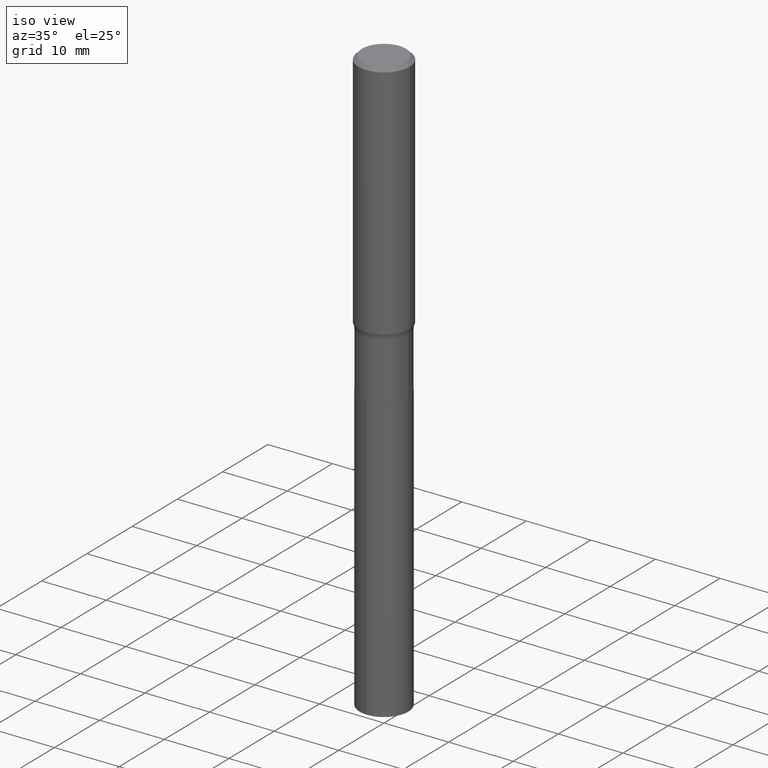
[diagram: clean part render]
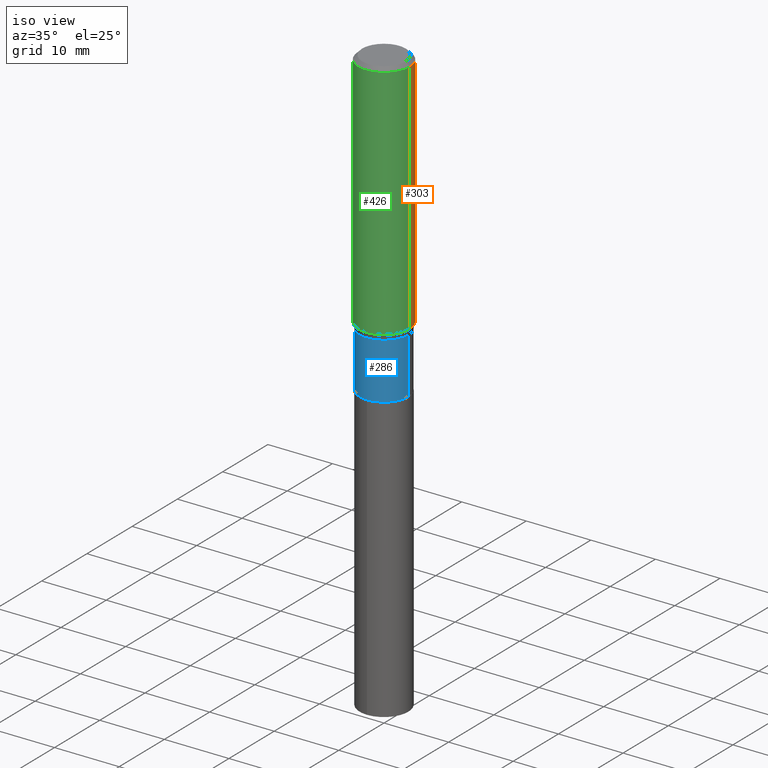
[diagram: same view with three faces highlighted in distinct colors, each labeled with its STEP entity id]
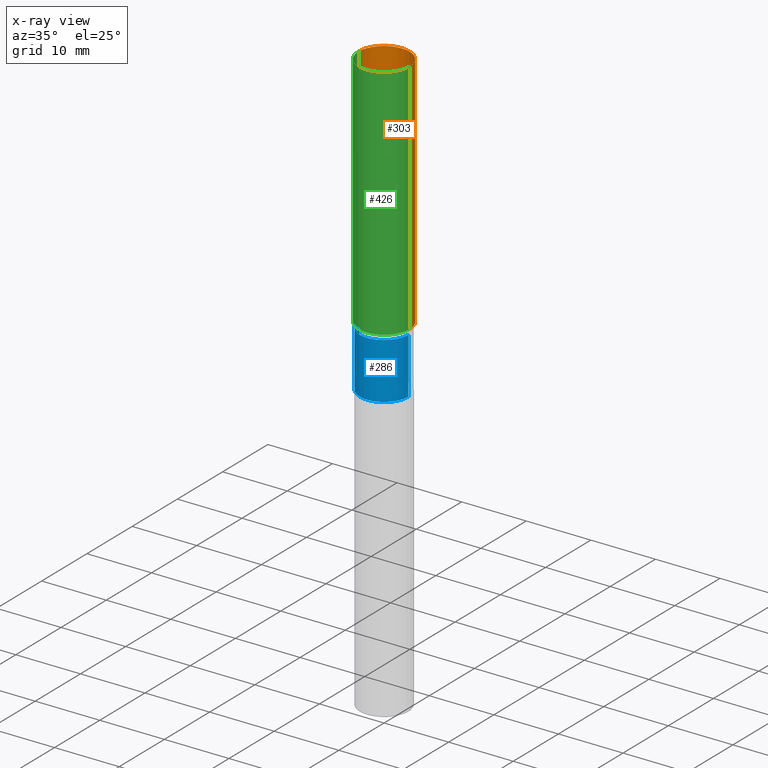
[diagram: x-ray of the same camera — body ghosted, the three highlighted faces saturated]
A machine part, iso view with three faces highlighted in distinct colors.
The next image is the same camera in x-ray (body ghosted, the three faces saturated) — at least one of them is partly hidden behind the body in this view.
Their STEP definitions:

[orange] entity #303 — the highlighted cylindrical surface (edge-blend (fillet) strip) has radius 3.9688 mm, axis along (-0, 0, 1).
#17 = CARTESIAN_POINT ( 'NONE',  ( 5.731567514496448931E-31, -8.183159387913672688E-17, -0.02343750000000014225 ) ) ;
#22 = DIRECTION ( 'NONE',  ( -2.445468806185136597E-29, 3.491481338843145583E-15, 1.000000000000000000 ) ) ;
#51 = CARTESIAN_POINT ( 'NONE',  ( -0.1562500000000000833, 1.110223024625157132E-15, -7.685836078523293962E-30 ) ) ;
#54 = DIRECTION ( 'NONE',  ( 1.000000000000000000, -6.982962677686268288E-15, 0.000000000000000000 ) ) ;
#65 = CARTESIAN_POINT ( 'NONE',  ( 0.000000000000000000, 0.000000000000000000, 0.000000000000000000 ) ) ;
#68 = CYLINDRICAL_SURFACE ( 'NONE', #140, 0.1562500000000000833 ) ;
#86 = EDGE_CURVE ( 'NONE', #256, #101, #365, .T. ) ;
#96 = DIRECTION ( 'NONE',  ( -2.445468806185136877E-29, 3.491481338843145188E-15, 1.000000000000000000 ) ) ;
#101 = VERTEX_POINT ( 'NONE', #437 ) ;
#105 = EDGE_CURVE ( 'NONE', #101, #217, #473, .T. ) ;
#109 = FACE_OUTER_BOUND ( 'NONE', #232, .T. ) ;
#117 = ORIENTED_EDGE ( 'NONE', *, *, #123, .T. ) ;
#123 = EDGE_CURVE ( 'NONE', #152, #217, #170, .T. ) ;
#140 = AXIS2_PLACEMENT_3D ( 'NONE', #65, #180, #304 ) ;
#147 = EDGE_CURVE ( 'NONE', #256, #152, #151, .T. ) ;
#151 = CIRCLE ( 'NONE', #251, 0.1562500000000001665 ) ;
#152 = VERTEX_POINT ( 'NONE', #288 ) ;
#153 = CARTESIAN_POINT ( 'NONE',  ( 0.1562500000000001665, -6.217981170176073659E-15, -1.468400588240382554 ) ) ;
#170 = LINE ( 'NONE', #51, #202 ) ;
#180 = DIRECTION ( 'NONE',  ( -2.445468806185136597E-29, 3.491481338843145583E-15, 1.000000000000000000 ) ) ;
#194 = VECTOR ( 'NONE', #206, 39.37007874015748143 ) ;
#202 = VECTOR ( 'NONE', #96, 39.37007874015748143 ) ;
#206 = DIRECTION ( 'NONE',  ( -2.445468806185136877E-29, 3.491481338843145188E-15, 1.000000000000000000 ) ) ;
#217 = VERTEX_POINT ( 'NONE', #252 ) ;
#232 = EDGE_LOOP ( 'NONE', ( #270, #117, #315, #414 ) ) ;
#236 = AXIS2_PLACEMENT_3D ( 'NONE', #17, #402, #403 ) ;
#244 = CARTESIAN_POINT ( 'NONE',  ( 3.590927833525760442E-29, -5.126893251787593696E-15, -1.468400588240382554 ) ) ;
#251 = AXIS2_PLACEMENT_3D ( 'NONE', #244, #22, #54 ) ;
#252 = CARTESIAN_POINT ( 'NONE',  ( -0.1562500000000000000, -1.494139398208207734E-15, -0.02343750000000014225 ) ) ;
#256 = VERTEX_POINT ( 'NONE', #153 ) ;
#270 = ORIENTED_EDGE ( 'NONE', *, *, #147, .T. ) ;
#288 = CARTESIAN_POINT ( 'NONE',  ( -0.1562500000000001665, -4.016670227162435578E-15, -1.468400588240382554 ) ) ;
#303 = ADVANCED_FACE ( 'NONE', ( #109 ), #68, .T. ) ;
#304 = DIRECTION ( 'NONE',  ( 1.000000000000000000, -6.982962677686266711E-15, 4.876176775795935232E-29 ) ) ;
#315 = ORIENTED_EDGE ( 'NONE', *, *, #105, .F. ) ;
#327 = CARTESIAN_POINT ( 'NONE',  ( 0.1562500000000000833, -1.091087918388479765E-15, 7.619026212181153180E-30 ) ) ;
#365 = LINE ( 'NONE', #327, #194 ) ;
#402 = DIRECTION ( 'NONE',  ( -2.445468806185136597E-29, 3.491481338843145583E-15, 1.000000000000000000 ) ) ;
#403 = DIRECTION ( 'NONE',  ( 1.000000000000000000, -6.982962677686266711E-15, 0.000000000000000000 ) ) ;
#414 = ORIENTED_EDGE ( 'NONE', *, *, #86, .F. ) ;
#437 = CARTESIAN_POINT ( 'NONE',  ( 0.1562500000000000000, -1.172919512267615999E-15, -0.02343750000000014225 ) ) ;
#473 = CIRCLE ( 'NONE', #236, 0.1562500000000000000 ) ;

[blue] entity #286 — the highlighted cylindrical surface (edge-blend (fillet) strip) has radius 3.7706 mm, axis along (-0, 0, 1).
#1 = CARTESIAN_POINT ( 'NONE',  ( 0.1484499999999999431, -6.282222372980468867E-15, -1.502400000000000402 ) ) ;
#24 = EDGE_CURVE ( 'NONE', #200, #450, #331, .T. ) ;
#29 = ORIENTED_EDGE ( 'NONE', *, *, #24, .T. ) ;
#34 = AXIS2_PLACEMENT_3D ( 'NONE', #302, #182, #444 ) ;
#57 = VECTOR ( 'NONE', #229, 39.37007874015748143 ) ;
#85 = VERTEX_POINT ( 'NONE', #1 ) ;
#97 = CIRCLE ( 'NONE', #226, 0.1484499999999999431 ) ;
#113 = AXIS2_PLACEMENT_3D ( 'NONE', #425, #463, #355 ) ;
#142 = CARTESIAN_POINT ( 'NONE',  ( -0.1484499999999999709, 1.054800691235868519E-15, -7.302159141483407353E-30 ) ) ;
#150 = FACE_OUTER_BOUND ( 'NONE', #385, .T. ) ;
#168 = EDGE_CURVE ( 'NONE', #448, #85, #97, .T. ) ;
#174 = DIRECTION ( 'NONE',  ( -2.445468806185136597E-29, 3.491481338843145583E-15, 1.000000000000000000 ) ) ;
#182 = DIRECTION ( 'NONE',  ( -2.445468806185136597E-29, 3.491481338843145583E-15, 1.000000000000000000 ) ) ;
#188 = VECTOR ( 'NONE', #278, 39.37007874015748143 ) ;
#200 = VERTEX_POINT ( 'NONE', #329 ) ;
#213 = EDGE_CURVE ( 'NONE', #450, #85, #480, .T. ) ;
#214 = DIRECTION ( 'NONE',  ( 1.000000000000000000, -6.982962677686264344E-15, 0.000000000000000000 ) ) ;
#215 = CYLINDRICAL_SURFACE ( 'NONE', #34, 0.1484499999999999709 ) ;
#226 = AXIS2_PLACEMENT_3D ( 'NONE', #442, #174, #214 ) ;
#229 = DIRECTION ( 'NONE',  ( -2.445468806185136877E-29, 3.491481338843145188E-15, 1.000000000000000000 ) ) ;
#273 = CARTESIAN_POINT ( 'NONE',  ( 0.1484499999999999986, -7.472468361392097332E-15, -1.843300000000000161 ) ) ;
#278 = DIRECTION ( 'NONE',  ( -2.445468806185136877E-29, 3.491481338843145188E-15, 1.000000000000000000 ) ) ;
#280 = CARTESIAN_POINT ( 'NONE',  ( 0.1484499999999999709, -1.036620809502526093E-15, 7.238684423669065009E-30 ) ) ;
#286 = ADVANCED_FACE ( 'NONE', ( #150 ), #215, .T. ) ;
#302 = CARTESIAN_POINT ( 'NONE',  ( 0.000000000000000000, 0.000000000000000000, 0.000000000000000000 ) ) ;
#305 = ORIENTED_EDGE ( 'NONE', *, *, #213, .T. ) ;
#311 = ORIENTED_EDGE ( 'NONE', *, *, #168, .F. ) ;
#329 = CARTESIAN_POINT ( 'NONE',  ( -0.1484499999999999986, -4.785923866447888291E-15, -1.843300000000000161 ) ) ;
#331 = CIRCLE ( 'NONE', #113, 0.1484499999999999986 ) ;
#344 = ORIENTED_EDGE ( 'NONE', *, *, #390, .F. ) ;
#355 = DIRECTION ( 'NONE',  ( 1.000000000000000000, -6.982962677686268288E-15, 0.000000000000000000 ) ) ;
#385 = EDGE_LOOP ( 'NONE', ( #344, #29, #305, #311 ) ) ;
#390 = EDGE_CURVE ( 'NONE', #200, #448, #481, .T. ) ;
#425 = CARTESIAN_POINT ( 'NONE',  ( 4.507732650441062752E-29, -6.435847551889571436E-15, -1.843300000000000161 ) ) ;
#442 = CARTESIAN_POINT ( 'NONE',  ( 3.674072334412550118E-29, -5.245601563477943760E-15, -1.502400000000000402 ) ) ;
#444 = DIRECTION ( 'NONE',  ( 1.000000000000000000, -6.982962677686266711E-15, 4.876176775795935793E-29 ) ) ;
#448 = VERTEX_POINT ( 'NONE', #466 ) ;
#450 = VERTEX_POINT ( 'NONE', #273 ) ;
#463 = DIRECTION ( 'NONE',  ( -2.445468806185136597E-29, 3.491481338843145583E-15, 1.000000000000000000 ) ) ;
#466 = CARTESIAN_POINT ( 'NONE',  ( -0.1484499999999999431, -4.785923866447888291E-15, -1.502400000000000402 ) ) ;
#480 = LINE ( 'NONE', #280, #188 ) ;
#481 = LINE ( 'NONE', #142, #57 ) ;

[green] entity #426 — the highlighted cylindrical surface (edge-blend (fillet) strip) has radius 3.9688 mm, axis along (-0, 0, 1).
#7 = ORIENTED_EDGE ( 'NONE', *, *, #492, .T. ) ;
#41 = DIRECTION ( 'NONE',  ( 1.000000000000000000, -6.982962677686268288E-15, 0.000000000000000000 ) ) ;
#46 = EDGE_LOOP ( 'NONE', ( #430, #7, #146, #348 ) ) ;
#51 = CARTESIAN_POINT ( 'NONE',  ( -0.1562500000000000833, 1.110223024625157132E-15, -7.685836078523293962E-30 ) ) ;
#86 = EDGE_CURVE ( 'NONE', #256, #101, #365, .T. ) ;
#96 = DIRECTION ( 'NONE',  ( -2.445468806185136877E-29, 3.491481338843145188E-15, 1.000000000000000000 ) ) ;
#101 = VERTEX_POINT ( 'NONE', #437 ) ;
#118 = DIRECTION ( 'NONE',  ( 1.000000000000000000, -6.982962677686266711E-15, 4.876176775795935232E-29 ) ) ;
#123 = EDGE_CURVE ( 'NONE', #152, #217, #170, .T. ) ;
#146 = ORIENTED_EDGE ( 'NONE', *, *, #86, .T. ) ;
#152 = VERTEX_POINT ( 'NONE', #288 ) ;
#153 = CARTESIAN_POINT ( 'NONE',  ( 0.1562500000000001665, -6.217981170176073659E-15, -1.468400588240382554 ) ) ;
#163 = DIRECTION ( 'NONE',  ( -2.445468806185136597E-29, 3.491481338843145583E-15, 1.000000000000000000 ) ) ;
#170 = LINE ( 'NONE', #51, #202 ) ;
#194 = VECTOR ( 'NONE', #206, 39.37007874015748143 ) ;
#202 = VECTOR ( 'NONE', #96, 39.37007874015748143 ) ;
#206 = DIRECTION ( 'NONE',  ( -2.445468806185136877E-29, 3.491481338843145188E-15, 1.000000000000000000 ) ) ;
#211 = CIRCLE ( 'NONE', #310, 0.1562500000000000000 ) ;
#217 = VERTEX_POINT ( 'NONE', #252 ) ;
#219 = AXIS2_PLACEMENT_3D ( 'NONE', #456, #239, #118 ) ;
#225 = CARTESIAN_POINT ( 'NONE',  ( 3.590927833525760442E-29, -5.126893251787593696E-15, -1.468400588240382554 ) ) ;
#235 = CYLINDRICAL_SURFACE ( 'NONE', #219, 0.1562500000000000833 ) ;
#239 = DIRECTION ( 'NONE',  ( -2.445468806185136597E-29, 3.491481338843145583E-15, 1.000000000000000000 ) ) ;
#252 = CARTESIAN_POINT ( 'NONE',  ( -0.1562500000000000000, -1.494139398208207734E-15, -0.02343750000000014225 ) ) ;
#256 = VERTEX_POINT ( 'NONE', #153 ) ;
#271 = FACE_OUTER_BOUND ( 'NONE', #46, .T. ) ;
#283 = AXIS2_PLACEMENT_3D ( 'NONE', #225, #312, #41 ) ;
#288 = CARTESIAN_POINT ( 'NONE',  ( -0.1562500000000001665, -4.016670227162435578E-15, -1.468400588240382554 ) ) ;
#310 = AXIS2_PLACEMENT_3D ( 'NONE', #419, #163, #391 ) ;
#312 = DIRECTION ( 'NONE',  ( -2.445468806185136597E-29, 3.491481338843145583E-15, 1.000000000000000000 ) ) ;
#327 = CARTESIAN_POINT ( 'NONE',  ( 0.1562500000000000833, -1.091087918388479765E-15, 7.619026212181153180E-30 ) ) ;
#348 = ORIENTED_EDGE ( 'NONE', *, *, #483, .F. ) ;
#365 = LINE ( 'NONE', #327, #194 ) ;
#391 = DIRECTION ( 'NONE',  ( 1.000000000000000000, -6.982962677686266711E-15, 0.000000000000000000 ) ) ;
#419 = CARTESIAN_POINT ( 'NONE',  ( 5.731567514496448931E-31, -8.183159387913672688E-17, -0.02343750000000014225 ) ) ;
#426 = ADVANCED_FACE ( 'NONE', ( #271 ), #235, .T. ) ;
#429 = CIRCLE ( 'NONE', #283, 0.1562500000000001665 ) ;
#430 = ORIENTED_EDGE ( 'NONE', *, *, #123, .F. ) ;
#437 = CARTESIAN_POINT ( 'NONE',  ( 0.1562500000000000000, -1.172919512267615999E-15, -0.02343750000000014225 ) ) ;
#456 = CARTESIAN_POINT ( 'NONE',  ( 0.000000000000000000, 0.000000000000000000, 0.000000000000000000 ) ) ;
#483 = EDGE_CURVE ( 'NONE', #217, #101, #211, .T. ) ;
#492 = EDGE_CURVE ( 'NONE', #152, #256, #429, .T. ) ;